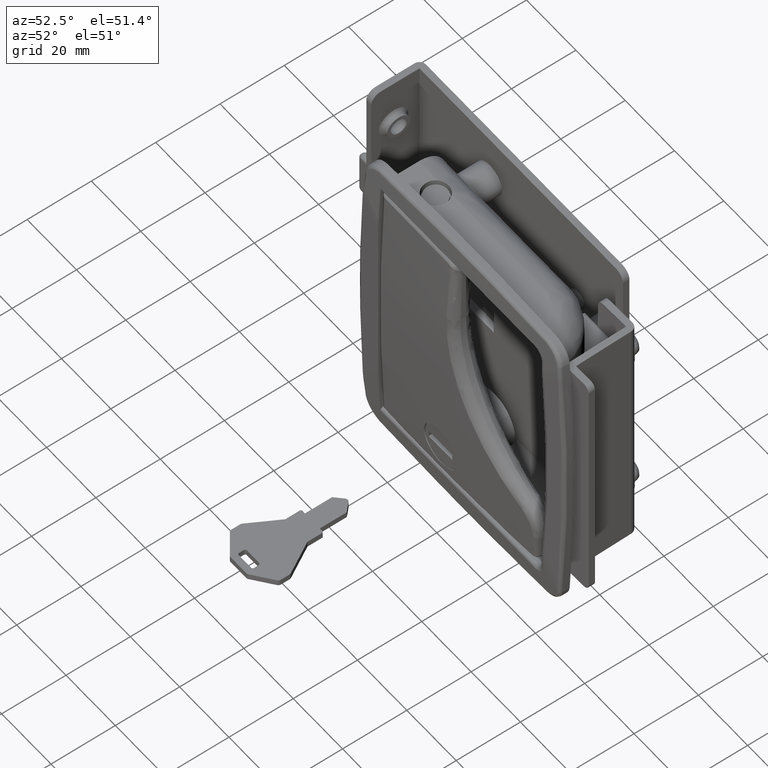
[diagram: clean part render]
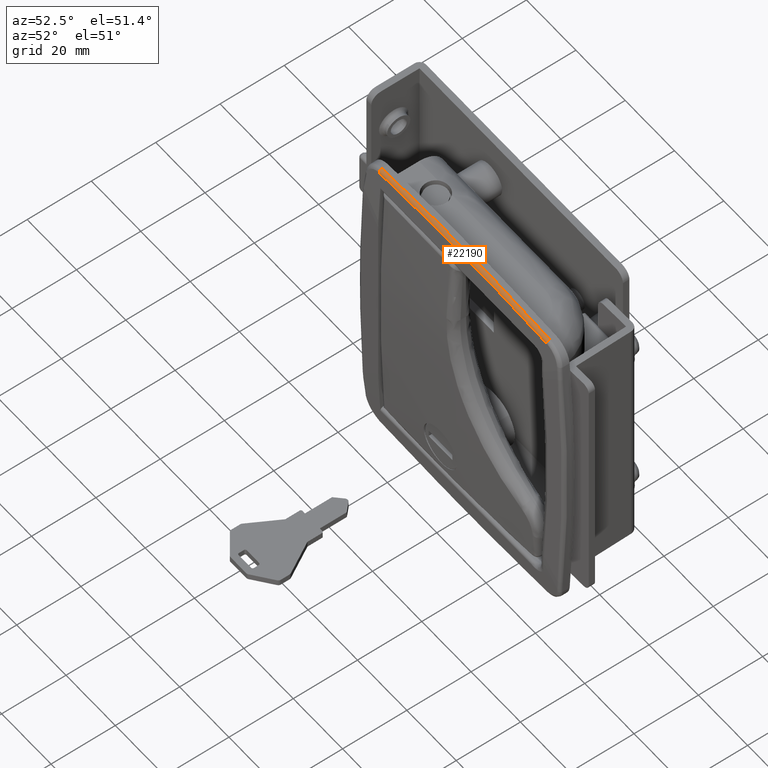
[diagram: same view with one face highlighted and labeled with its STEP entity id]
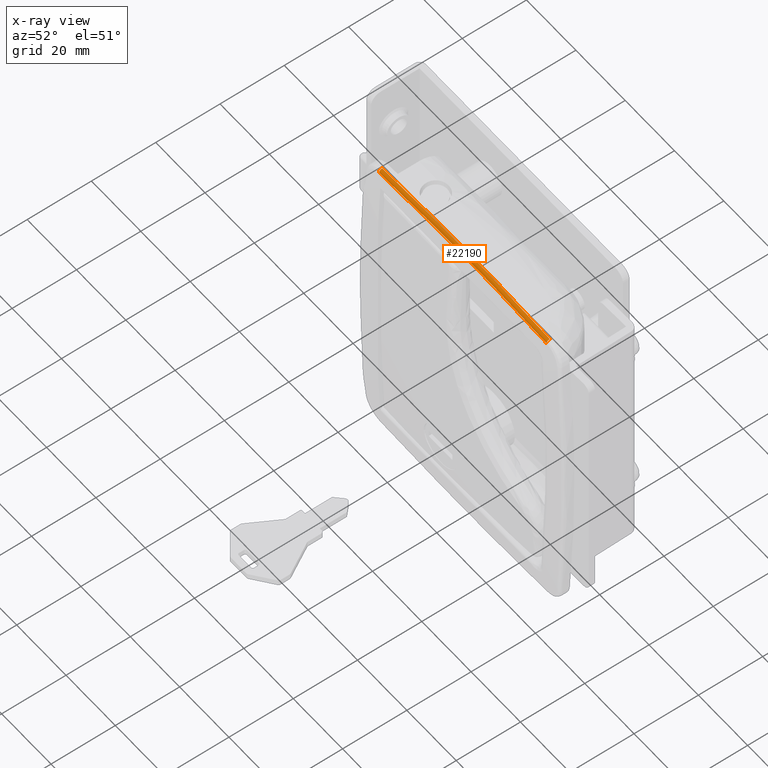
[diagram: x-ray of the same camera — body ghosted, the highlighted face saturated]
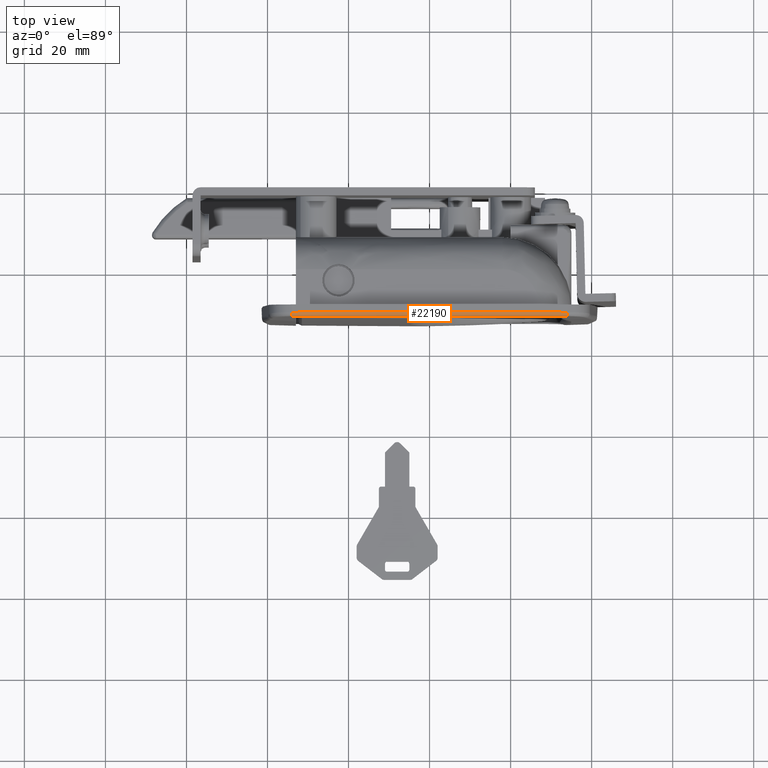
[diagram: same view with one face highlighted and labeled with its STEP entity id]
A machine part, auxiliary view. The second image highlights one B-rep face of the part: STEP entity #22190.
The next image is the same camera in x-ray: the body ghosted, the highlighted face saturated — about 0% of this face is hidden behind the body in this view.
A second angle (top view) of the same face is appended — the face is thin or edge-on in the first view.
In plain terms, the highlighted face is a freeform B-spline surface patch.
Its self-contained STEP definition (entity closure, byte-faithful):
#22118=CARTESIAN_POINT('',(-33.922376438375252,-31.902460684280211,48.910830107962283));
#22119=CARTESIAN_POINT('',(-22.614935604978871,-31.851997985710419,49.682352737305600));
#22120=CARTESIAN_POINT('',(-11.307471971138691,-31.825956097107898,50.066786615711827));
#22121=CARTESIAN_POINT('',(11.307434862512540,-31.825953002004749,50.066832839337081));
#22122=CARTESIAN_POINT('',(22.614900070382721,-31.851991795576410,49.682445181297652));
#22123=CARTESIAN_POINT('',(33.922344062671947,-31.902451614480771,48.910968775648733));
#22124=CARTESIAN_POINT('',(-33.986203013887341,-31.841455751269418,49.843532631873032));
#22125=CARTESIAN_POINT('',(-22.657419762924050,-31.790005063128461,50.615385176799556));
#22126=CARTESIAN_POINT('',(-11.328714998711975,-31.763470328123102,50.999976877496422));
#22127=CARTESIAN_POINT('',(11.328674063365927,-31.763467173746687,51.000023120420771));
#22128=CARTESIAN_POINT('',(22.657380398499598,-31.789998752230790,50.615477659373958));
#22129=CARTESIAN_POINT('',(33.986166802137127,-31.841446503895817,49.843671358856405));
#22130=CARTESIAN_POINT('',(-33.990359156688633,-30.904592859498749,49.843249430801713));
#22131=CARTESIAN_POINT('',(-22.660258093836159,-30.854197500683419,50.615286608709667));
#22132=CARTESIAN_POINT('',(-11.330134239617930,-30.828190360953240,50.999976872032242));
#22133=CARTESIAN_POINT('',(11.330093048609760,-30.828187269934261,51.000023125884418));
#22134=CARTESIAN_POINT('',(22.660218480137640,-30.854191316312850,50.615379116450647));
#22135=CARTESIAN_POINT('',(33.990322708088129,-30.904583801802151,49.843388190968732));
#22143=(BOUNDED_SURFACE()B_SPLINE_SURFACE(3,2,((#22118,#22124,#22130),(#22119,#22125,#22131),(#22120,#22126,#22132),(#22121,#22127,#22133),(#22122,#22128,#22134),(#22123,#22129,#22135)),.UNSPECIFIED.,.F.,.F.,.U.)B_SPLINE_SURFACE_WITH_KNOTS((4,2,4),(3,3),(0.0,34.069457595778900,68.138915191557800),(0.0,1.0),.UNSPECIFIED.)GEOMETRIC_REPRESENTATION_ITEM()RATIONAL_B_SPLINE_SURFACE(((1.0,0.729765777608182,1.0),(1.0,0.730152209296710,1.0),(1.0,0.730345715590878,1.0),(1.0,0.730345715590878,1.0),(1.0,0.730152273201236,1.0),(1.0,0.729765847056729,1.0)))REPRESENTATION_ITEM('')SURFACE());
#22144=CARTESIAN_POINT('',(-33.990359156688648,-30.904592859498749,49.843249430801798));
#22145=VERTEX_POINT('',#22144);
#22146=CARTESIAN_POINT('',(-33.922376438375252,-31.902460684280250,48.910830107962397));
#22147=VERTEX_POINT('',#22146);
#22148=CARTESIAN_POINT('',(-33.990359156688648,-30.904592859498749,49.843249430801798));
#22149=CARTESIAN_POINT('',(-33.989909455373152,-31.006538443832870,49.843317716253530));
#22150=CARTESIAN_POINT('',(-33.986632934054022,-31.226089829844881,49.809592950097212));
#22151=CARTESIAN_POINT('',(-33.974492679749140,-31.529549511694299,49.651275832285570));
#22152=CARTESIAN_POINT('',(-33.952808346930887,-31.802161531944169,49.350876089874937));
#22153=CARTESIAN_POINT('',(-33.933599960928788,-31.892055443961500,49.074861351201008));
#22154=CARTESIAN_POINT('',(-33.922376438375252,-31.902460684280250,48.910830107962397));
#22155=B_SPLINE_CURVE_WITH_KNOTS('',3,(#22148,#22149,#22150,#22151,#22152,#22153,#22154),.UNSPECIFIED.,.F.,.U.,(4,1,1,1,4),(0.000000256753736,0.305836126788270,0.658748077283104,1.011613912407447,1.505668755102344),.UNSPECIFIED.);
#22156=EDGE_CURVE('',#22145,#22147,#22155,.T.);
#22157=ORIENTED_EDGE('',*,*,#22156,.T.);
#22158=CARTESIAN_POINT('',(33.922344062672003,-31.902451614480700,48.910968775648712));
#22159=VERTEX_POINT('',#22158);
#22160=CARTESIAN_POINT('',(33.922344062672003,-31.902451614480700,48.910968775648712));
#22161=CARTESIAN_POINT('',(22.614889062217038,-31.851991746246071,49.682445935504553));
#22162=CARTESIAN_POINT('',(-0.000019349817446,-31.799914257642751,50.451219742850881));
#22163=CARTESIAN_POINT('',(-22.614924605147781,-31.851997936552120,49.682353488885852));
#22164=CARTESIAN_POINT('',(-33.922376438375260,-31.902460684280250,48.910830107962298));
#22165=B_SPLINE_CURVE_WITH_KNOTS('',3,(#22160,#22161,#22162,#22163,#22164),.UNSPECIFIED.,.F.,.U.,(4,1,4),(0.0,0.500000000000000,1.0),.UNSPECIFIED.);
#22166=EDGE_CURVE('',#22159,#22147,#22165,.T.);
#22167=ORIENTED_EDGE('',*,*,#22166,.F.);
#22168=CARTESIAN_POINT('',(33.990322708088136,-30.904583801802051,49.843388190968803));
#22169=VERTEX_POINT('',#22168);
#22170=CARTESIAN_POINT('',(33.922344062672003,-31.902451614480700,48.910968775648712));
#22171=CARTESIAN_POINT('',(33.932497404597740,-31.892975899470770,49.059364251226832));
#22172=CARTESIAN_POINT('',(33.949043100057622,-31.821666451659670,49.297532585091460));
#22173=CARTESIAN_POINT('',(33.968344681637227,-31.614606441201548,49.567268595373861));
#22174=CARTESIAN_POINT('',(33.983997622085319,-31.327730829919169,49.778234936729042));
#22175=CARTESIAN_POINT('',(33.989616240876657,-31.069345836684430,49.843796304641181));
#22176=CARTESIAN_POINT('',(33.990322708088136,-30.904583801802051,49.843388190968803));
#22177=B_SPLINE_CURVE_WITH_KNOTS('',3,(#22170,#22171,#22172,#22173,#22174,#22175,#22176),.UNSPECIFIED.,.F.,.U.,(4,1,1,1,4),(0.000000256752540,0.446998575574804,0.729350287422018,1.011613775904839,1.505668551932489),.UNSPECIFIED.);
#22178=EDGE_CURVE('',#22159,#22169,#22177,.T.);
#22179=ORIENTED_EDGE('',*,*,#22178,.T.);
#22180=CARTESIAN_POINT('',(-33.990359156688648,-30.904592859498749,49.843249430801798));
#22181=CARTESIAN_POINT('',(-22.660247095087509,-30.854197449824468,50.615287358168473));
#22182=CARTESIAN_POINT('',(-0.000021384097940,-30.802183272138119,51.384666385905568));
#22183=CARTESIAN_POINT('',(22.660207481430330,-30.854191267816731,50.615379865861520));
#22184=CARTESIAN_POINT('',(33.990322708088151,-30.904583801802051,49.843388190968803));
#22185=B_SPLINE_CURVE_WITH_KNOTS('',3,(#22180,#22181,#22182,#22183,#22184),.UNSPECIFIED.,.F.,.U.,(4,1,4),(0.0,0.500000000000000,1.0),.UNSPECIFIED.);
#22186=EDGE_CURVE('',#22145,#22169,#22185,.T.);
#22187=ORIENTED_EDGE('',*,*,#22186,.F.);
#22188=EDGE_LOOP('',(#22157,#22167,#22179,#22187));
#22189=FACE_OUTER_BOUND('',#22188,.T.);
#22190=ADVANCED_FACE('',(#22189),#22143,.T.);